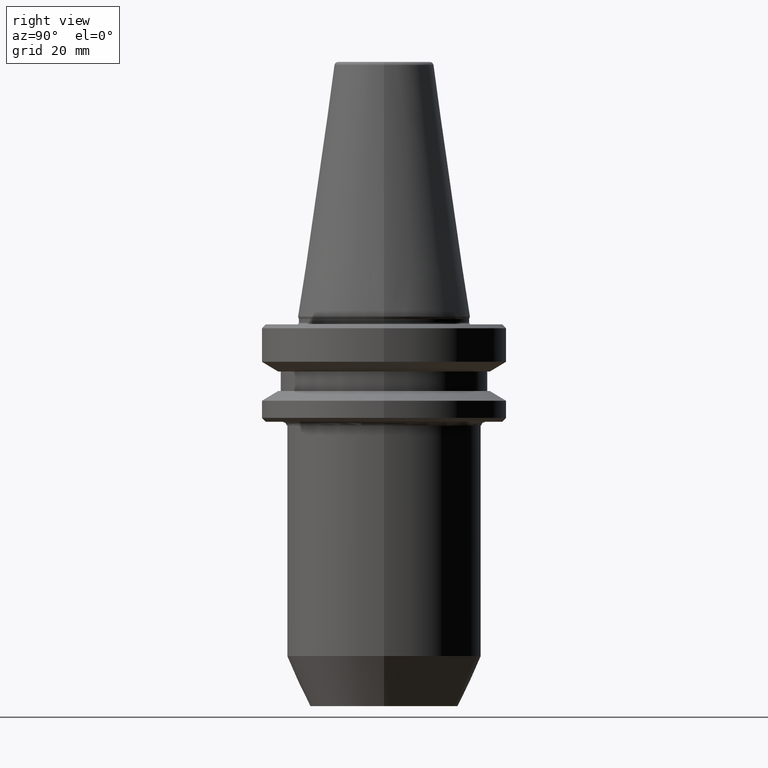
[diagram: clean part render]
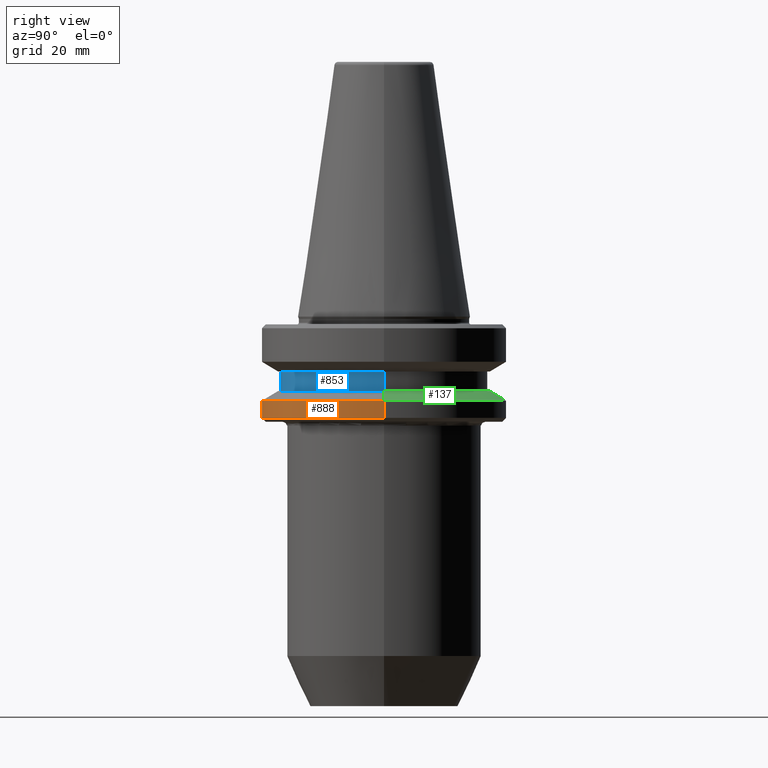
[diagram: same view with three faces highlighted in distinct colors, each labeled with its STEP entity id]
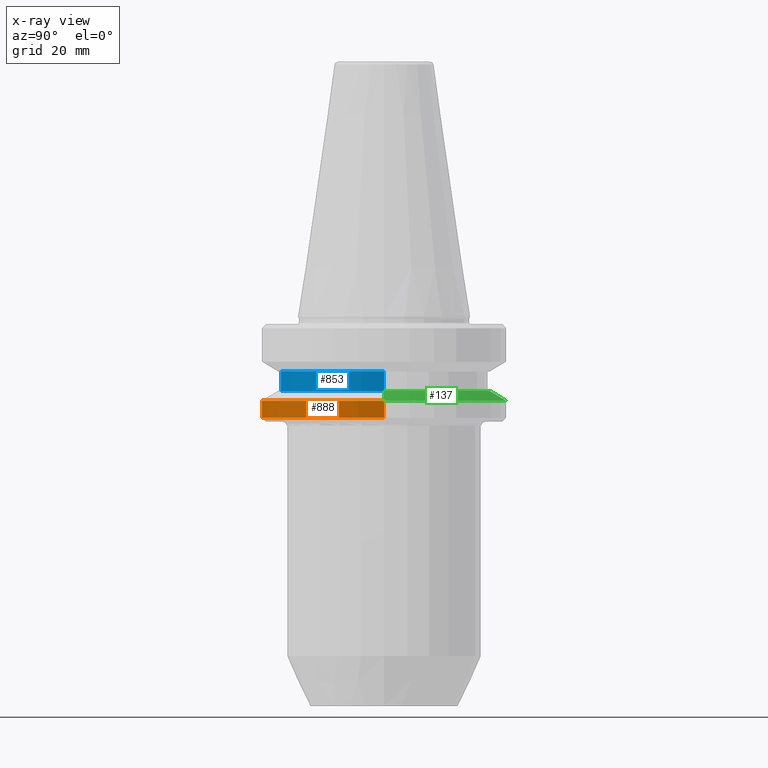
[diagram: x-ray of the same camera — body ghosted, the three highlighted faces saturated]
A machine part, right view with three faces highlighted in distinct colors.
The next image is the same camera in x-ray (body ghosted, the three faces saturated) — at least one of them is partly hidden behind the body in this view.
Their STEP definitions:

[orange] entity #888 — the highlighted cylindrical surface (partial cylindrical patch) has radius 31.5 mm, axis along (-0, -0, 1).
#18 = AXIS2_PLACEMENT_3D ( 'NONE', #828, #275, #360 ) ;
#25 = ORIENTED_EDGE ( 'NONE', *, *, #204, .T. ) ;
#104 = EDGE_LOOP ( 'NONE', ( #595, #713, #25, #219 ) ) ;
#117 = DIRECTION ( 'NONE',  ( -0.0000000000000000000, -0.0000000000000000000, 1.000000000000000000 ) ) ;
#141 = CARTESIAN_POINT ( 'NONE',  ( -31.50000000000019500, 3.857637417314186400E-015, -25.31128678844346400 ) ) ;
#142 = CARTESIAN_POINT ( 'NONE',  ( -31.50000000000019500, 3.857637417314186400E-015, 82.74845858742440900 ) ) ;
#183 = AXIS2_PLACEMENT_3D ( 'NONE', #224, #784, #318 ) ;
#187 = VECTOR ( 'NONE', #401, 1000.000000000000000 ) ;
#204 = EDGE_CURVE ( 'NONE', #809, #950, #610, .T. ) ;
#209 = EDGE_CURVE ( 'NONE', #682, #307, #840, .T. ) ;
#219 = ORIENTED_EDGE ( 'NONE', *, *, #525, .F. ) ;
#224 = CARTESIAN_POINT ( 'NONE',  ( 0.0000000000000000000, 0.0000000000000000000, -25.31128678844346400 ) ) ;
#231 = AXIS2_PLACEMENT_3D ( 'NONE', #623, #117, #699 ) ;
#252 = CARTESIAN_POINT ( 'NONE',  ( 31.50000000000019500, 0.0000000000000000000, -25.31128678844346400 ) ) ;
#275 = DIRECTION ( 'NONE',  ( -0.0000000000000000000, -0.0000000000000000000, 1.000000000000000000 ) ) ;
#307 = VERTEX_POINT ( 'NONE', #955 ) ;
#318 = DIRECTION ( 'NONE',  ( 1.000000000000000000, 0.0000000000000000000, 0.0000000000000000000 ) ) ;
#360 = DIRECTION ( 'NONE',  ( 1.000000000000000000, 0.0000000000000000000, 0.0000000000000000000 ) ) ;
#370 = FACE_OUTER_BOUND ( 'NONE', #104, .T. ) ;
#371 = CYLINDRICAL_SURFACE ( 'NONE', #18, 31.50000000000019500 ) ;
#401 = DIRECTION ( 'NONE',  ( -0.0000000000000000000, -0.0000000000000000000, 1.000000000000000000 ) ) ;
#414 = DIRECTION ( 'NONE',  ( -0.0000000000000000000, -0.0000000000000000000, 1.000000000000000000 ) ) ;
#450 = CARTESIAN_POINT ( 'NONE',  ( 31.50000000000019500, 0.0000000000000000000, -20.91142879476059900 ) ) ;
#525 = EDGE_CURVE ( 'NONE', #307, #950, #959, .T. ) ;
#595 = ORIENTED_EDGE ( 'NONE', *, *, #209, .F. ) ;
#610 = LINE ( 'NONE', #870, #816 ) ;
#623 = CARTESIAN_POINT ( 'NONE',  ( 0.0000000000000000000, 0.0000000000000000000, -20.91142879476059900 ) ) ;
#663 = EDGE_CURVE ( 'NONE', #682, #809, #895, .T. ) ;
#682 = VERTEX_POINT ( 'NONE', #141 ) ;
#699 = DIRECTION ( 'NONE',  ( 1.000000000000000000, 0.0000000000000000000, 0.0000000000000000000 ) ) ;
#713 = ORIENTED_EDGE ( 'NONE', *, *, #663, .T. ) ;
#784 = DIRECTION ( 'NONE',  ( -0.0000000000000000000, -0.0000000000000000000, 1.000000000000000000 ) ) ;
#809 = VERTEX_POINT ( 'NONE', #252 ) ;
#816 = VECTOR ( 'NONE', #414, 1000.000000000000000 ) ;
#828 = CARTESIAN_POINT ( 'NONE',  ( 0.0000000000000000000, 0.0000000000000000000, 82.74845858742440900 ) ) ;
#840 = LINE ( 'NONE', #142, #187 ) ;
#870 = CARTESIAN_POINT ( 'NONE',  ( 31.50000000000019500, 0.0000000000000000000, 82.74845858742440900 ) ) ;
#888 = ADVANCED_FACE ( 'NONE', ( #370 ), #371, .T. ) ;
#895 = CIRCLE ( 'NONE', #183, 31.50000000000019500 ) ;
#950 = VERTEX_POINT ( 'NONE', #450 ) ;
#955 = CARTESIAN_POINT ( 'NONE',  ( -31.50000000000019500, 3.857637417314186400E-015, -20.91142879476059900 ) ) ;
#959 = CIRCLE ( 'NONE', #231, 31.50000000000019500 ) ;

[blue] entity #853 — the highlighted cylindrical surface (partial cylindrical patch) has radius 26.5 mm, axis along (-0, -0, 1).
#3 = EDGE_CURVE ( 'NONE', #1038, #487, #898, .T. ) ;
#23 = VERTEX_POINT ( 'NONE', #431 ) ;
#32 = AXIS2_PLACEMENT_3D ( 'NONE', #179, #593, #741 ) ;
#73 = AXIS2_PLACEMENT_3D ( 'NONE', #863, #405, #936 ) ;
#133 = ORIENTED_EDGE ( 'NONE', *, *, #498, .F. ) ;
#163 = EDGE_CURVE ( 'NONE', #700, #23, #812, .T. ) ;
#179 = CARTESIAN_POINT ( 'NONE',  ( 0.0000000000000000000, 0.0000000000000000000, 82.74845858742440900 ) ) ;
#237 = DIRECTION ( 'NONE',  ( -0.0000000000000000000, -0.0000000000000000000, 1.000000000000000000 ) ) ;
#244 = CIRCLE ( 'NONE', #73, 26.50000000000007800 ) ;
#274 = AXIS2_PLACEMENT_3D ( 'NONE', #664, #592, #342 ) ;
#342 = DIRECTION ( 'NONE',  ( 1.000000000000000000, 0.0000000000000000000, 0.0000000000000000000 ) ) ;
#362 = EDGE_LOOP ( 'NONE', ( #982, #894, #711, #133 ) ) ;
#405 = DIRECTION ( 'NONE',  ( -0.0000000000000000000, -0.0000000000000000000, 1.000000000000000000 ) ) ;
#413 = CARTESIAN_POINT ( 'NONE',  ( 26.50000000000007800, 0.0000000000000000000, -18.41128678844344800 ) ) ;
#431 = CARTESIAN_POINT ( 'NONE',  ( 26.50000000000007800, 0.0000000000000000000, -13.41128678834002700 ) ) ;
#487 = VERTEX_POINT ( 'NONE', #602 ) ;
#498 = EDGE_CURVE ( 'NONE', #487, #23, #653, .T. ) ;
#508 = DIRECTION ( 'NONE',  ( -0.0000000000000000000, -0.0000000000000000000, 1.000000000000000000 ) ) ;
#592 = DIRECTION ( 'NONE',  ( -0.0000000000000000000, -0.0000000000000000000, 1.000000000000000000 ) ) ;
#593 = DIRECTION ( 'NONE',  ( -0.0000000000000000000, -0.0000000000000000000, 1.000000000000000000 ) ) ;
#602 = CARTESIAN_POINT ( 'NONE',  ( -26.50000000000007800, 3.245314017740495600E-015, -13.41128678834002700 ) ) ;
#604 = CARTESIAN_POINT ( 'NONE',  ( -26.50000000000007800, 3.245314017740495600E-015, -18.41128678844344800 ) ) ;
#647 = CYLINDRICAL_SURFACE ( 'NONE', #32, 26.50000000000007800 ) ;
#653 = CIRCLE ( 'NONE', #274, 26.50000000000007800 ) ;
#657 = EDGE_CURVE ( 'NONE', #1038, #700, #244, .T. ) ;
#664 = CARTESIAN_POINT ( 'NONE',  ( 0.0000000000000000000, 0.0000000000000000000, -13.41128678834002700 ) ) ;
#700 = VERTEX_POINT ( 'NONE', #413 ) ;
#711 = ORIENTED_EDGE ( 'NONE', *, *, #163, .T. ) ;
#741 = DIRECTION ( 'NONE',  ( 1.000000000000000000, 0.0000000000000000000, 0.0000000000000000000 ) ) ;
#742 = FACE_OUTER_BOUND ( 'NONE', #362, .T. ) ;
#751 = VECTOR ( 'NONE', #237, 1000.000000000000000 ) ;
#803 = CARTESIAN_POINT ( 'NONE',  ( 26.50000000000007800, 0.0000000000000000000, 82.74845858742440900 ) ) ;
#812 = LINE ( 'NONE', #803, #751 ) ;
#853 = ADVANCED_FACE ( 'NONE', ( #742 ), #647, .T. ) ;
#863 = CARTESIAN_POINT ( 'NONE',  ( 0.0000000000000000000, 0.0000000000000000000, -18.41128678844344800 ) ) ;
#894 = ORIENTED_EDGE ( 'NONE', *, *, #657, .T. ) ;
#898 = LINE ( 'NONE', #1035, #984 ) ;
#936 = DIRECTION ( 'NONE',  ( 1.000000000000000000, 0.0000000000000000000, 0.0000000000000000000 ) ) ;
#982 = ORIENTED_EDGE ( 'NONE', *, *, #3, .F. ) ;
#984 = VECTOR ( 'NONE', #508, 1000.000000000000000 ) ;
#1035 = CARTESIAN_POINT ( 'NONE',  ( -26.50000000000007800, 3.245314017740495600E-015, 82.74845858742440900 ) ) ;
#1038 = VERTEX_POINT ( 'NONE', #604 ) ;

[green] entity #137 — the highlighted conical surface has half-angle 60 deg.
#20 = ORIENTED_EDGE ( 'NONE', *, *, #875, .F. ) ;
#28 = CIRCLE ( 'NONE', #357, 27.16962701892167300 ) ;
#58 = VERTEX_POINT ( 'NONE', #1032 ) ;
#137 = ADVANCED_FACE ( 'NONE', ( #987 ), #953, .T. ) ;
#147 = DIRECTION ( 'NONE',  ( -0.0000000000000000000, -0.0000000000000000000, 1.000000000000000000 ) ) ;
#167 = EDGE_CURVE ( 'NONE', #58, #781, #28, .T. ) ;
#211 = DIRECTION ( 'NONE',  ( -1.000000000000000000, 0.0000000000000000000, 0.0000000000000000000 ) ) ;
#222 = EDGE_CURVE ( 'NONE', #58, #950, #516, .T. ) ;
#277 = ORIENTED_EDGE ( 'NONE', *, *, #222, .T. ) ;
#307 = VERTEX_POINT ( 'NONE', #955 ) ;
#312 = AXIS2_PLACEMENT_3D ( 'NONE', #438, #922, #463 ) ;
#314 = EDGE_CURVE ( 'NONE', #950, #307, #874, .T. ) ;
#357 = AXIS2_PLACEMENT_3D ( 'NONE', #638, #147, #718 ) ;
#400 = AXIS2_PLACEMENT_3D ( 'NONE', #948, #698, #211 ) ;
#438 = CARTESIAN_POINT ( 'NONE',  ( 0.0000000000000000000, 0.0000000000000000000, -20.91142879476059900 ) ) ;
#450 = CARTESIAN_POINT ( 'NONE',  ( 31.50000000000019500, 0.0000000000000000000, -20.91142879476059900 ) ) ;
#463 = DIRECTION ( 'NONE',  ( 1.000000000000000000, 0.0000000000000000000, 0.0000000000000000000 ) ) ;
#473 = EDGE_LOOP ( 'NONE', ( #1046, #277, #654, #20 ) ) ;
#488 = DIRECTION ( 'NONE',  ( 0.8660254037844400400, 1.060575238724908600E-016, -0.4999999999999976100 ) ) ;
#507 = VECTOR ( 'NONE', #520, 1000.000000000000000 ) ;
#516 = LINE ( 'NONE', #935, #575 ) ;
#520 = DIRECTION ( 'NONE',  ( -0.8660254037844400400, 0.0000000000000000000, -0.4999999999999976100 ) ) ;
#575 = VECTOR ( 'NONE', #488, 1000.000000000000000 ) ;
#638 = CARTESIAN_POINT ( 'NONE',  ( 0.0000000000000000000, 0.0000000000000000000, -18.41128678844344800 ) ) ;
#654 = ORIENTED_EDGE ( 'NONE', *, *, #314, .T. ) ;
#674 = LINE ( 'NONE', #970, #507 ) ;
#698 = DIRECTION ( 'NONE',  ( 0.0000000000000000000, 0.0000000000000000000, -1.000000000000000000 ) ) ;
#718 = DIRECTION ( 'NONE',  ( 1.000000000000000000, 0.0000000000000000000, 0.0000000000000000000 ) ) ;
#781 = VERTEX_POINT ( 'NONE', #1022 ) ;
#874 = CIRCLE ( 'NONE', #312, 31.50000000000019500 ) ;
#875 = EDGE_CURVE ( 'NONE', #781, #307, #674, .T. ) ;
#922 = DIRECTION ( 'NONE',  ( -0.0000000000000000000, -0.0000000000000000000, 1.000000000000000000 ) ) ;
#935 = CARTESIAN_POINT ( 'NONE',  ( 31.50000000000019500, 3.857637417314186400E-015, -20.91142879476059900 ) ) ;
#948 = CARTESIAN_POINT ( 'NONE',  ( 0.0000000000000000000, 0.0000000000000000000, -20.91142879476059900 ) ) ;
#950 = VERTEX_POINT ( 'NONE', #450 ) ;
#953 = CONICAL_SURFACE ( 'NONE', #400, 31.50000000000019500, 1.047197551196600500 ) ;
#955 = CARTESIAN_POINT ( 'NONE',  ( -31.50000000000019500, 3.857637417314186400E-015, -20.91142879476059900 ) ) ;
#970 = CARTESIAN_POINT ( 'NONE',  ( -31.50000000000019500, 0.0000000000000000000, -20.91142879476059900 ) ) ;
#987 = FACE_OUTER_BOUND ( 'NONE', #473, .T. ) ;
#1022 = CARTESIAN_POINT ( 'NONE',  ( -27.16962701892167300, 0.0000000000000000000, -18.41128678844344800 ) ) ;
#1032 = CARTESIAN_POINT ( 'NONE',  ( 27.16962701892167300, 3.592478546794586600E-015, -18.41128678844344800 ) ) ;
#1046 = ORIENTED_EDGE ( 'NONE', *, *, #167, .F. ) ;